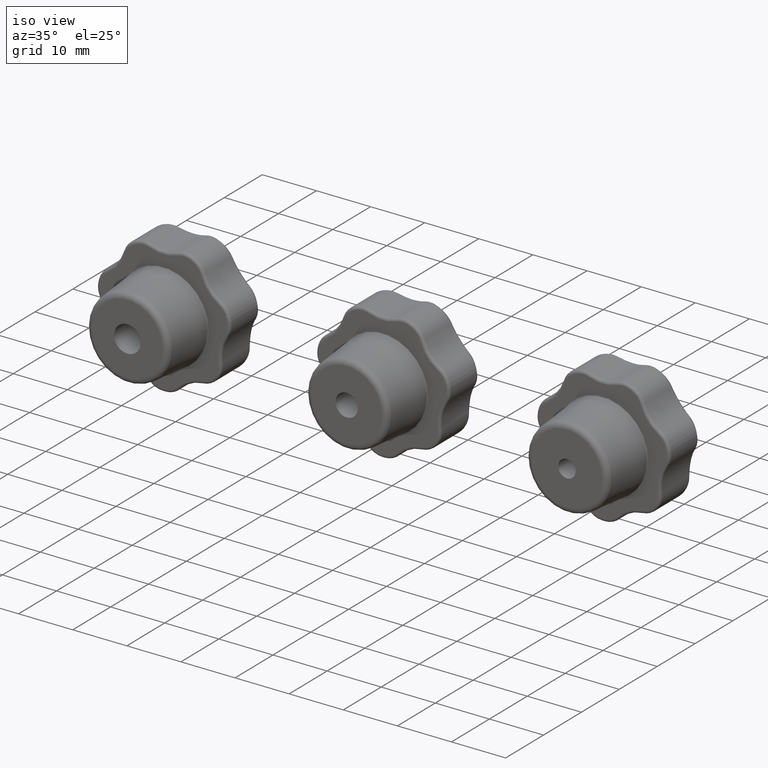
[diagram: clean part render]
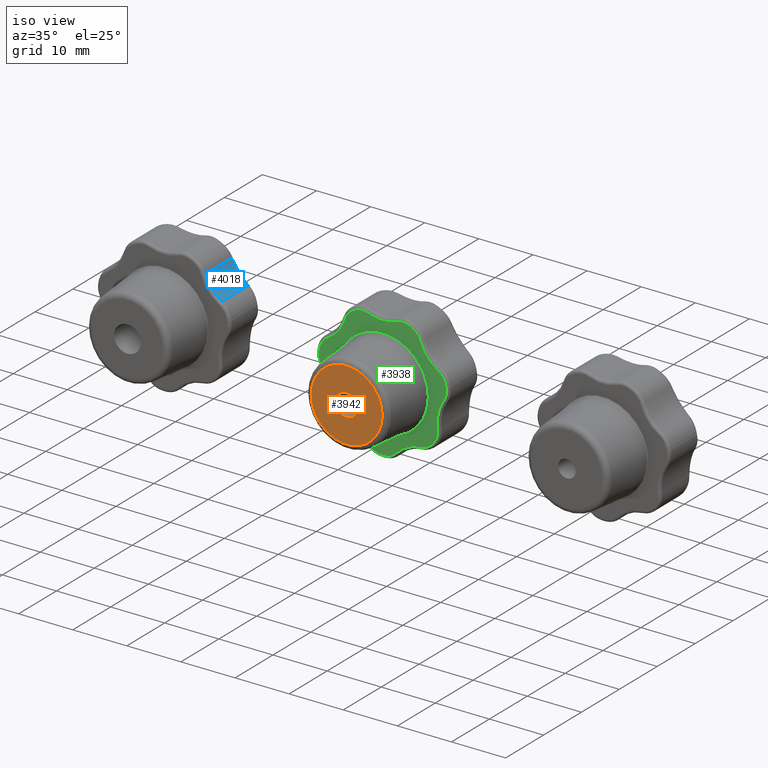
[diagram: same view with three faces highlighted in distinct colors, each labeled with its STEP entity id]
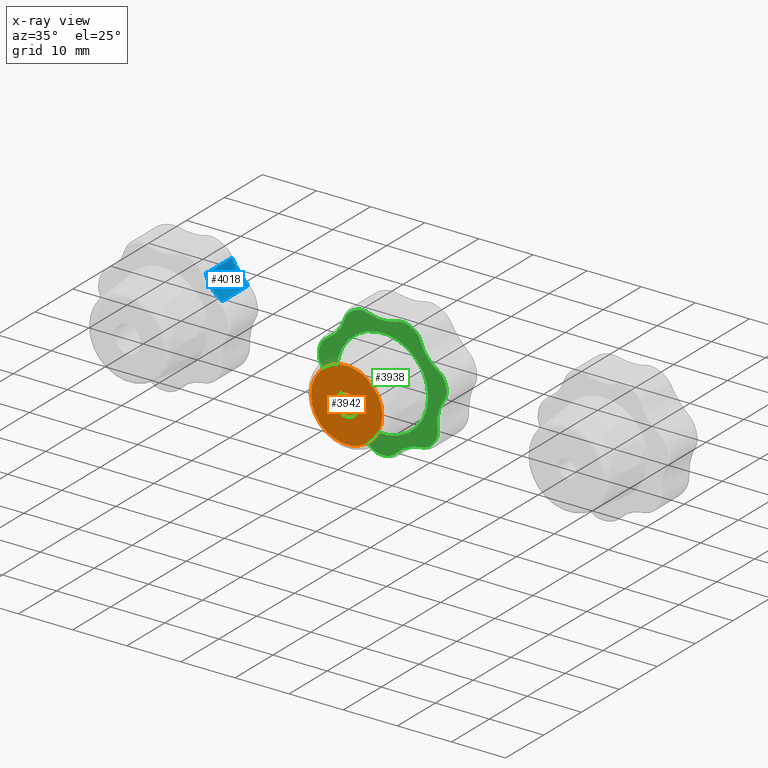
[diagram: x-ray of the same camera — body ghosted, the three highlighted faces saturated]
A machine part, iso view with three faces highlighted in distinct colors.
The next image is the same camera in x-ray (body ghosted, the three faces saturated) — at least one of them is partly hidden behind the body in this view.
Their STEP definitions:

[orange] entity #3942 — the highlighted planar face has unit normal (0, -1, -0).
#38=PLANE('',#4445);
#523=FACE_BOUND('',#1086,.T.);
#798=FACE_OUTER_BOUND('',#1085,.T.);
#1085=EDGE_LOOP('',(#3341));
#1086=EDGE_LOOP('',(#3342));
#1320=CIRCLE('',#4248,2.067);
#1450=CIRCLE('',#4444,6.57583586565548);
#1702=VERTEX_POINT('',#6964);
#1818=VERTEX_POINT('',#7940);
#2140=EDGE_CURVE('',#1702,#1702,#1320,.T.);
#2339=EDGE_CURVE('',#1818,#1818,#1450,.T.);
#3341=ORIENTED_EDGE('',*,*,#2339,.F.);
#3342=ORIENTED_EDGE('',*,*,#2140,.T.);
#3942=ADVANCED_FACE('',(#798,#523),#38,.T.);
#4248=AXIS2_PLACEMENT_3D('',#6965,#5100,#5101);
#4444=AXIS2_PLACEMENT_3D('',#7941,#5519,#5520);
#4445=AXIS2_PLACEMENT_3D('',#7942,#5521,#5522);
#5100=DIRECTION('center_axis',(-1.05688744923203E-32,1.,0.));
#5101=DIRECTION('ref_axis',(1.,1.05688744923203E-32,0.));
#5519=DIRECTION('center_axis',(-1.05688744923203E-32,1.,0.));
#5520=DIRECTION('ref_axis',(1.,1.05688744923203E-32,1.22464679914735E-16));
#5521=DIRECTION('center_axis',(1.05688744923203E-32,-1.,0.));
#5522=DIRECTION('ref_axis',(0.,0.,-1.));
#6964=CARTESIAN_POINT('',(2.067,-9.5,0.));
#6965=CARTESIAN_POINT('Origin',(1.00404307677043E-31,-9.5,0.));
#7940=CARTESIAN_POINT('',(-6.57583586565548,-9.5,0.));
#7941=CARTESIAN_POINT('Origin',(1.00404307677043E-31,-9.5,0.));
#7942=CARTESIAN_POINT('Origin',(-3.75,-9.5,0.));

[blue] entity #4018 — the highlighted cylindrical surface (partial cylindrical patch) has radius 6.625 mm, axis along (0, 1, 0).
#115=LINE('',#8894,#199);
#116=LINE('',#8895,#200);
#199=VECTOR('',#5907,6.93882651897587);
#200=VECTOR('',#5908,6.93882651897587);
#432=B_SPLINE_CURVE_WITH_KNOTS('',3,(#8413,#8414,#8415,#8416,#8417),
 .UNSPECIFIED.,.F.,.F.,(4,1,4),(7.13768044314273E-16,0.230545197008505,
0.537938793019845),.UNSPECIFIED.);
#603=CYLINDRICAL_SURFACE('',#4629,6.625);
#874=FACE_OUTER_BOUND('',#1163,.T.);
#1163=EDGE_LOOP('',(#3662,#3663,#3664,#3665));
#1543=CIRCLE('',#4581,6.625);
#1853=VERTEX_POINT('',#8369);
#1855=VERTEX_POINT('',#8405);
#1909=VERTEX_POINT('',#8816);
#1911=VERTEX_POINT('',#8822);
#2394=EDGE_CURVE('',#1853,#1855,#432,.T.);
#2490=EDGE_CURVE('',#1911,#1909,#1543,.T.);
#2526=EDGE_CURVE('',#1909,#1853,#115,.T.);
#2527=EDGE_CURVE('',#1855,#1911,#116,.T.);
#3662=ORIENTED_EDGE('',*,*,#2394,.F.);
#3663=ORIENTED_EDGE('',*,*,#2526,.F.);
#3664=ORIENTED_EDGE('',*,*,#2490,.F.);
#3665=ORIENTED_EDGE('',*,*,#2527,.F.);
#4018=ADVANCED_FACE('',(#874),#603,.F.);
#4581=AXIS2_PLACEMENT_3D('',#8824,#5809,#5810);
#4629=AXIS2_PLACEMENT_3D('',#8893,#5905,#5906);
#5809=DIRECTION('center_axis',(0.,1.,0.));
#5810=DIRECTION('ref_axis',(-0.78183148246803,0.,-0.623489801858734));
#5905=DIRECTION('center_axis',(0.,1.,0.));
#5906=DIRECTION('ref_axis',(-0.993210021945394,0.,-0.116335086312041));
#5907=DIRECTION('',(0.,1.,0.));
#5908=DIRECTION('',(0.,-1.,0.));
#8369=CARTESIAN_POINT('',(7.44793783320849,7.43882651897587,9.04005898637316));
#8405=CARTESIAN_POINT('',(10.4707279162794,7.43882651897587,5.24960011312204));
#8413=CARTESIAN_POINT('Ctrl Pts',(7.44793783320849,7.43882651897587,9.04005898637316));
#8414=CARTESIAN_POINT('Ctrl Pts',(7.65343299309312,7.60065060031157,8.37243605417307));
#8415=CARTESIAN_POINT('Ctrl Pts',(8.39347978962373,7.82879282181009,6.85952143243912));
#8416=CARTESIAN_POINT('Ctrl Pts',(9.6638515742614,7.6545919607568,5.71480417391353));
#8417=CARTESIAN_POINT('Ctrl Pts',(10.4707279162794,7.43882651897587,5.24960011312205));
#8816=CARTESIAN_POINT('',(7.44793783320849,0.5,9.04005898637316));
#8822=CARTESIAN_POINT('',(10.4707279162794,0.5,5.24960011312205));
#8824=CARTESIAN_POINT('Origin',(13.779779878499,0.5,10.9890077577602));
#8893=CARTESIAN_POINT('Origin',(13.779779878499,0.,10.9890077577602));
#8894=CARTESIAN_POINT('',(7.44793783320849,3.75,9.04005898637316));
#8895=CARTESIAN_POINT('',(10.4707279162794,3.75,5.24960011312205));

[green] entity #3938 — the highlighted planar face has unit normal (0, -1, -0).
#37=PLANE('',#4437);
#519=FACE_BOUND('',#1078,.T.);
#794=FACE_OUTER_BOUND('',#1077,.T.);
#1077=EDGE_LOOP('',(#3306,#3307,#3308,#3309,#3310,#3311,#3312,#3313,#3314,
#3315,#3316,#3317,#3318,#3319,#3320,#3321,#3322,#3323,#3324,#3325,#3326,
#3327,#3328,#3329,#3330,#3331,#3332,#3333));
#1078=EDGE_LOOP('',(#3334));
#1378=CIRCLE('',#4329,3.);
#1381=CIRCLE('',#4333,12.);
#1383=CIRCLE('',#4336,3.);
#1385=CIRCLE('',#4339,7.125);
#1387=CIRCLE('',#4342,3.);
#1389=CIRCLE('',#4345,12.);
#1391=CIRCLE('',#4348,3.);
#1393=CIRCLE('',#4351,7.125);
#1395=CIRCLE('',#4354,3.);
#1397=CIRCLE('',#4357,12.);
#1399=CIRCLE('',#4360,3.);
#1401=CIRCLE('',#4363,7.125);
#1403=CIRCLE('',#4366,3.);
#1406=CIRCLE('',#4370,12.);
#1409=CIRCLE('',#4374,3.);
#1412=CIRCLE('',#4378,7.125);
#1415=CIRCLE('',#4382,3.);
#1418=CIRCLE('',#4386,12.);
#1421=CIRCLE('',#4390,3.);
#1424=CIRCLE('',#4394,7.125);
#1427=CIRCLE('',#4398,3.);
#1430=CIRCLE('',#4402,12.);
#1433=CIRCLE('',#4406,3.);
#1436=CIRCLE('',#4410,7.125);
#1439=CIRCLE('',#4414,3.);
#1442=CIRCLE('',#4418,12.);
#1445=CIRCLE('',#4422,3.);
#1446=CIRCLE('',#4424,7.125);
#1447=CIRCLE('',#4438,8.43483282686891);
#1774=VERTEX_POINT('',#7768);
#1775=VERTEX_POINT('',#7770);
#1776=VERTEX_POINT('',#7774);
#1777=VERTEX_POINT('',#7778);
#1778=VERTEX_POINT('',#7782);
#1779=VERTEX_POINT('',#7786);
#1780=VERTEX_POINT('',#7790);
#1781=VERTEX_POINT('',#7794);
#1782=VERTEX_POINT('',#7798);
#1783=VERTEX_POINT('',#7802);
#1784=VERTEX_POINT('',#7806);
#1785=VERTEX_POINT('',#7810);
#1786=VERTEX_POINT('',#7814);
#1787=VERTEX_POINT('',#7818);
#1788=VERTEX_POINT('',#7822);
#1790=VERTEX_POINT('',#7828);
#1792=VERTEX_POINT('',#7834);
#1794=VERTEX_POINT('',#7840);
#1796=VERTEX_POINT('',#7846);
#1798=VERTEX_POINT('',#7852);
#1800=VERTEX_POINT('',#7858);
#1802=VERTEX_POINT('',#7864);
#1804=VERTEX_POINT('',#7870);
#1806=VERTEX_POINT('',#7876);
#1808=VERTEX_POINT('',#7882);
#1810=VERTEX_POINT('',#7888);
#1812=VERTEX_POINT('',#7894);
#1814=VERTEX_POINT('',#7900);
#1815=VERTEX_POINT('',#7931);
#2255=EDGE_CURVE('',#1774,#1775,#1378,.T.);
#2258=EDGE_CURVE('',#1775,#1776,#1381,.T.);
#2260=EDGE_CURVE('',#1776,#1777,#1383,.T.);
#2262=EDGE_CURVE('',#1777,#1778,#1385,.T.);
#2264=EDGE_CURVE('',#1778,#1779,#1387,.T.);
#2266=EDGE_CURVE('',#1779,#1780,#1389,.T.);
#2268=EDGE_CURVE('',#1780,#1781,#1391,.T.);
#2270=EDGE_CURVE('',#1781,#1782,#1393,.T.);
#2272=EDGE_CURVE('',#1782,#1783,#1395,.T.);
#2274=EDGE_CURVE('',#1783,#1784,#1397,.T.);
#2276=EDGE_CURVE('',#1784,#1785,#1399,.T.);
#2278=EDGE_CURVE('',#1785,#1786,#1401,.T.);
#2280=EDGE_CURVE('',#1786,#1787,#1403,.T.);
#2283=EDGE_CURVE('',#1787,#1788,#1406,.T.);
#2286=EDGE_CURVE('',#1788,#1790,#1409,.T.);
#2289=EDGE_CURVE('',#1790,#1792,#1412,.T.);
#2292=EDGE_CURVE('',#1792,#1794,#1415,.T.);
#2295=EDGE_CURVE('',#1794,#1796,#1418,.T.);
#2298=EDGE_CURVE('',#1796,#1798,#1421,.T.);
#2301=EDGE_CURVE('',#1798,#1800,#1424,.T.);
#2304=EDGE_CURVE('',#1800,#1802,#1427,.T.);
#2307=EDGE_CURVE('',#1802,#1804,#1430,.T.);
#2310=EDGE_CURVE('',#1804,#1806,#1433,.T.);
#2313=EDGE_CURVE('',#1806,#1808,#1436,.T.);
#2316=EDGE_CURVE('',#1808,#1810,#1439,.T.);
#2319=EDGE_CURVE('',#1810,#1812,#1442,.T.);
#2322=EDGE_CURVE('',#1812,#1814,#1445,.T.);
#2323=EDGE_CURVE('',#1814,#1774,#1446,.T.);
#2336=EDGE_CURVE('',#1815,#1815,#1447,.T.);
#3306=ORIENTED_EDGE('',*,*,#2255,.F.);
#3307=ORIENTED_EDGE('',*,*,#2323,.F.);
#3308=ORIENTED_EDGE('',*,*,#2322,.F.);
#3309=ORIENTED_EDGE('',*,*,#2319,.F.);
#3310=ORIENTED_EDGE('',*,*,#2316,.F.);
#3311=ORIENTED_EDGE('',*,*,#2313,.F.);
#3312=ORIENTED_EDGE('',*,*,#2310,.F.);
#3313=ORIENTED_EDGE('',*,*,#2307,.F.);
#3314=ORIENTED_EDGE('',*,*,#2304,.F.);
#3315=ORIENTED_EDGE('',*,*,#2301,.F.);
#3316=ORIENTED_EDGE('',*,*,#2298,.F.);
#3317=ORIENTED_EDGE('',*,*,#2295,.F.);
#3318=ORIENTED_EDGE('',*,*,#2292,.F.);
#3319=ORIENTED_EDGE('',*,*,#2289,.F.);
#3320=ORIENTED_EDGE('',*,*,#2286,.F.);
#3321=ORIENTED_EDGE('',*,*,#2283,.F.);
#3322=ORIENTED_EDGE('',*,*,#2280,.F.);
#3323=ORIENTED_EDGE('',*,*,#2278,.F.);
#3324=ORIENTED_EDGE('',*,*,#2276,.F.);
#3325=ORIENTED_EDGE('',*,*,#2274,.F.);
#3326=ORIENTED_EDGE('',*,*,#2272,.F.);
#3327=ORIENTED_EDGE('',*,*,#2270,.F.);
#3328=ORIENTED_EDGE('',*,*,#2268,.F.);
#3329=ORIENTED_EDGE('',*,*,#2266,.F.);
#3330=ORIENTED_EDGE('',*,*,#2264,.F.);
#3331=ORIENTED_EDGE('',*,*,#2262,.F.);
#3332=ORIENTED_EDGE('',*,*,#2260,.F.);
#3333=ORIENTED_EDGE('',*,*,#2258,.F.);
#3334=ORIENTED_EDGE('',*,*,#2336,.F.);
#3938=ADVANCED_FACE('',(#794,#519),#37,.T.);
#4329=AXIS2_PLACEMENT_3D('',#7771,#5277,#5278);
#4333=AXIS2_PLACEMENT_3D('',#7776,#5285,#5286);
#4336=AXIS2_PLACEMENT_3D('',#7780,#5291,#5292);
#4339=AXIS2_PLACEMENT_3D('',#7784,#5297,#5298);
#4342=AXIS2_PLACEMENT_3D('',#7788,#5303,#5304);
#4345=AXIS2_PLACEMENT_3D('',#7792,#5309,#5310);
#4348=AXIS2_PLACEMENT_3D('',#7796,#5315,#5316);
#4351=AXIS2_PLACEMENT_3D('',#7800,#5321,#5322);
#4354=AXIS2_PLACEMENT_3D('',#7804,#5327,#5328);
#4357=AXIS2_PLACEMENT_3D('',#7808,#5333,#5334);
#4360=AXIS2_PLACEMENT_3D('',#7812,#5339,#5340);
#4363=AXIS2_PLACEMENT_3D('',#7816,#5345,#5346);
#4366=AXIS2_PLACEMENT_3D('',#7820,#5351,#5352);
#4370=AXIS2_PLACEMENT_3D('',#7826,#5359,#5360);
#4374=AXIS2_PLACEMENT_3D('',#7832,#5367,#5368);
#4378=AXIS2_PLACEMENT_3D('',#7838,#5375,#5376);
#4382=AXIS2_PLACEMENT_3D('',#7844,#5383,#5384);
#4386=AXIS2_PLACEMENT_3D('',#7850,#5391,#5392);
#4390=AXIS2_PLACEMENT_3D('',#7856,#5399,#5400);
#4394=AXIS2_PLACEMENT_3D('',#7862,#5407,#5408);
#4398=AXIS2_PLACEMENT_3D('',#7868,#5415,#5416);
#4402=AXIS2_PLACEMENT_3D('',#7874,#5423,#5424);
#4406=AXIS2_PLACEMENT_3D('',#7880,#5431,#5432);
#4410=AXIS2_PLACEMENT_3D('',#7886,#5439,#5440);
#4414=AXIS2_PLACEMENT_3D('',#7892,#5447,#5448);
#4418=AXIS2_PLACEMENT_3D('',#7898,#5455,#5456);
#4422=AXIS2_PLACEMENT_3D('',#7903,#5463,#5464);
#4424=AXIS2_PLACEMENT_3D('',#7905,#5467,#5468);
#4437=AXIS2_PLACEMENT_3D('',#7930,#5505,#5506);
#4438=AXIS2_PLACEMENT_3D('',#7932,#5507,#5508);
#5277=DIRECTION('center_axis',(-1.05688744923203E-32,1.,0.));
#5278=DIRECTION('ref_axis',(-0.456114521719556,-4.8206171341787E-33,-0.889921088117672));
#5285=DIRECTION('center_axis',(-1.05688744923203E-32,1.,0.));
#5286=DIRECTION('ref_axis',(-0.78183148246803,-8.26307881234934E-33,-0.623489801858734));
#5291=DIRECTION('center_axis',(-1.05688744923203E-32,1.,0.));
#5292=DIRECTION('ref_axis',(-0.969103937809211,-1.02423378887189E-32,-0.246652706700494));
#5297=DIRECTION('center_axis',(1.05688744923203E-32,-1.,0.));
#5298=DIRECTION('ref_axis',(0.974927912181824,1.03038907429096E-32,0.222520933956314));
#5303=DIRECTION('center_axis',(-1.05688744923203E-32,1.,0.));
#5304=DIRECTION('ref_axis',(-0.980151076374418,-1.03590937097139E-32,-0.198252030209199));
#5309=DIRECTION('center_axis',(-1.05688744923203E-32,1.,0.));
#5310=DIRECTION('ref_axis',(-0.974927912181824,-1.03038907429096E-32,0.222520933956314));
#5315=DIRECTION('center_axis',(-1.05688744923203E-32,1.,0.));
#5316=DIRECTION('ref_axis',(-0.797067273499584,-8.42410397555305E-33,0.603890521134369));
#5321=DIRECTION('center_axis',(1.05688744923203E-32,-1.,0.));
#5322=DIRECTION('ref_axis',(0.78183148246803,8.26307881234934E-33,-0.623489801858733));
#5327=DIRECTION('center_axis',(-1.05688744923203E-32,1.,0.));
#5328=DIRECTION('ref_axis',(-0.766113879081065,-8.09696143483244E-33,0.642704850051222));
#5333=DIRECTION('center_axis',(-1.05688744923203E-32,1.,0.));
#5334=DIRECTION('ref_axis',(-0.433883739117558,-4.58566278299212E-33,0.900968867902419));
#5339=DIRECTION('center_axis',(-1.05688744923203E-32,1.,0.));
#5340=DIRECTION('ref_axis',(-0.024822695035461,-2.6234794839093E-34,0.999691869433365));
#5345=DIRECTION('center_axis',(1.05688744923203E-32,-1.,0.));
#5346=DIRECTION('ref_axis',(-8.37904169528421E-17,-8.85570400433776E-49,
-1.));
#5351=DIRECTION('center_axis',(-1.05688744923203E-32,1.,0.));
#5352=DIRECTION('ref_axis',(0.0248226950354608,2.62347948390928E-34,0.999691869433365));
#5359=DIRECTION('center_axis',(-1.05688744923203E-32,1.,0.));
#5360=DIRECTION('ref_axis',(0.433883739117558,4.58566278299212E-33,0.900968867902419));
#5367=DIRECTION('center_axis',(-1.05688744923203E-32,1.,0.));
#5368=DIRECTION('ref_axis',(0.766113879081065,8.09696143483244E-33,0.642704850051222));
#5375=DIRECTION('center_axis',(1.05688744923203E-32,-1.,0.));
#5376=DIRECTION('ref_axis',(-0.78183148246803,-8.26307881234934E-33,-0.623489801858734));
#5383=DIRECTION('center_axis',(-1.05688744923203E-32,1.,0.));
#5384=DIRECTION('ref_axis',(0.797067273499583,8.42410397555305E-33,0.603890521134369));
#5391=DIRECTION('center_axis',(-1.05688744923203E-32,1.,0.));
#5392=DIRECTION('ref_axis',(0.974927912181824,1.03038907429096E-32,0.222520933956314));
#5399=DIRECTION('center_axis',(-1.05688744923203E-32,1.,0.));
#5400=DIRECTION('ref_axis',(0.980151076374419,1.03590937097139E-32,-0.198252030209198));
#5407=DIRECTION('center_axis',(1.05688744923203E-32,-1.,0.));
#5408=DIRECTION('ref_axis',(-0.974927912181824,-1.03038907429096E-32,0.222520933956314));
#5415=DIRECTION('center_axis',(-1.05688744923203E-32,1.,0.));
#5416=DIRECTION('ref_axis',(0.969103937809212,1.02423378887189E-32,-0.246652706700494));
#5423=DIRECTION('center_axis',(-1.05688744923203E-32,1.,0.));
#5424=DIRECTION('ref_axis',(0.78183148246803,8.26307881234934E-33,-0.623489801858733));
#5431=DIRECTION('center_axis',(-1.05688744923203E-32,1.,0.));
#5432=DIRECTION('ref_axis',(0.456114521719557,4.8206171341787E-33,-0.889921088117671));
#5439=DIRECTION('center_axis',(1.05688744923203E-32,-1.,0.));
#5440=DIRECTION('ref_axis',(-0.433883739117558,-4.58566278299212E-33,0.900968867902419));
#5447=DIRECTION('center_axis',(-1.05688744923203E-32,1.,0.));
#5448=DIRECTION('ref_axis',(0.411385570830784,4.34788246606211E-33,-0.911461415591592));
#5455=DIRECTION('center_axis',(-1.05688744923203E-32,1.,0.));
#5456=DIRECTION('ref_axis',(1.83697019872103E-16,1.94147074764153E-48,-1.));
#5463=DIRECTION('center_axis',(-1.05688744923203E-32,1.,0.));
#5464=DIRECTION('ref_axis',(-0.411385570830784,-4.3478824660621E-33,-0.911461415591593));
#5467=DIRECTION('center_axis',(1.05688744923203E-32,-1.,0.));
#5468=DIRECTION('ref_axis',(0.433883739117558,4.58566278299212E-33,0.900968867902419));
#5505=DIRECTION('center_axis',(1.05688744923203E-32,-1.,0.));
#5506=DIRECTION('ref_axis',(0.,0.,-1.));
#5507=DIRECTION('center_axis',(1.05688744923203E-32,-1.,0.));
#5508=DIRECTION('ref_axis',(1.,1.05688744923203E-32,1.22464679914735E-16));
#7768=CARTESIAN_POINT('',(-7.11901830552849,-2.35044024024198E-33,-8.77418059035811));
#7770=CARTESIAN_POINT('',(-9.19550084446972,-2.42965235798065E-32,-7.70991337301248));
#7771=CARTESIAN_POINT('Origin',(-6.89662563335229,0.,-5.78243502975936));
#7774=CARTESIAN_POINT('',(-9.56280118396126,-1.01068045508299E-31,-7.24933331528005));
#7776=CARTESIAN_POINT('Origin',(-3.42113882891801E-48,0.,0.));
#7778=CARTESIAN_POINT('',(-10.1383241662624,-3.13496415444614E-32,-4.98809079372522));
#7780=CARTESIAN_POINT('Origin',(-7.17210088797094,0.,-5.43699998646004));
#7782=CARTESIAN_POINT('',(-11.2985659311445,6.21929490743083E-32,0.0952605177732541));
#7784=CARTESIAN_POINT('Origin',(-17.1831044522046,0.,-3.92193146098005));
#7786=CARTESIAN_POINT('',(-11.7611540016327,-3.10755401320266E-32,2.38227969598023));
#7788=CARTESIAN_POINT('Origin',(-8.82086550122451,0.,1.78670977198517));
#7790=CARTESIAN_POINT('',(-11.6300660281927,-1.22916708189367E-31,2.95661363385158));
#7792=CARTESIAN_POINT('Origin',(-3.42113882891801E-48,0.,0.));
#7794=CARTESIAN_POINT('',(-10.2209881455459,-1.58368097557427E-32,4.81643727201728));
#7796=CARTESIAN_POINT('Origin',(-8.72254952114456,0.,2.21746022538869));
#7798=CARTESIAN_POINT('',(-6.97006296186581,7.19710434201269E-32,8.89296851306093));
#7800=CARTESIAN_POINT('Origin',(-13.779779878499,0.,10.9890077577602));
#7802=CARTESIAN_POINT('',(-5.4704183117463,-1.44540411393343E-32,10.6805675642501));
#7804=CARTESIAN_POINT('Origin',(-4.10281373380972,0.,8.01042567318756));
#7806=CARTESIAN_POINT('',(-4.93965394308251,-5.22065825599342E-32,10.936170212766));
#7808=CARTESIAN_POINT('Origin',(-3.42113882891801E-48,0.,0.));
#7810=CARTESIAN_POINT('',(-2.60703958107132,1.16014627910965E-32,10.9940898345154));
#7812=CARTESIAN_POINT('Origin',(-3.70474045731188,0.,8.20212765957447));
#7814=CARTESIAN_POINT('',(2.60703958107132,2.75534741288541E-32,10.9940898345154));
#7816=CARTESIAN_POINT('Origin',(5.28443724616016E-33,0.,17.625));
#7818=CARTESIAN_POINT('',(4.93965394308251,1.30516456399835E-32,10.936170212766));
#7820=CARTESIAN_POINT('Origin',(3.70474045731188,0.,8.20212765957447));
#7822=CARTESIAN_POINT('',(5.4704183117463,5.78161645573374E-32,10.6805675642501));
#7826=CARTESIAN_POINT('Origin',(-3.42113882891801E-48,0.,0.));
#7828=CARTESIAN_POINT('',(6.97006296186581,3.03035972295271E-32,8.89296851306093));
#7832=CARTESIAN_POINT('Origin',(4.10281373380972,0.,8.01042567318756));
#7834=CARTESIAN_POINT('',(10.2209881455459,-3.76124231698889E-32,4.81643727201728));
#7838=CARTESIAN_POINT('Origin',(13.779779878499,0.,10.9890077577602));
#7840=CARTESIAN_POINT('',(11.6300660281927,3.07291770473418E-32,2.95661363385158));
#7844=CARTESIAN_POINT('Origin',(8.72254952114456,0.,2.21746022538869));
#7846=CARTESIAN_POINT('',(11.7611540016327,1.24302160528107E-31,2.38227969598023));
#7850=CARTESIAN_POINT('Origin',(-3.42113882891801E-48,0.,0.));
#7852=CARTESIAN_POINT('',(11.2985659311445,2.6186504873393E-32,0.0952605177732588));
#7856=CARTESIAN_POINT('Origin',(8.82086550122451,0.,1.78670977198518));
#7858=CARTESIAN_POINT('',(10.1383241662624,-7.44553986680959E-32,-4.98809079372522));
#7862=CARTESIAN_POINT('Origin',(17.1831044522046,0.,-3.92193146098004));
#7864=CARTESIAN_POINT('',(9.56280118396126,2.52670113770747E-32,-7.24933331528004));
#7868=CARTESIAN_POINT('Origin',(7.17210088797094,0.,-5.43699998646003));
#7870=CARTESIAN_POINT('',(9.19550084446972,9.7186094319226E-32,-7.70991337301247));
#7874=CARTESIAN_POINT('Origin',(-3.42113882891801E-48,0.,0.));
#7876=CARTESIAN_POINT('',(7.11901830552849,2.35044024024199E-33,-8.77418059035811));
#7880=CARTESIAN_POINT('Origin',(6.89662563335229,0.,-5.78243502975936));
#7882=CARTESIAN_POINT('',(2.42129530565924,-5.52319403558793E-32,-11.0364847532835));
#7886=CARTESIAN_POINT('Origin',(7.64720090194697,0.,-15.8795762967801));
#7888=CARTESIAN_POINT('',(0.294552002612193,7.78270786767468E-34,-11.9963844185553));
#7892=CARTESIAN_POINT('Origin',(0.220914001959145,0.,-8.9972883139165));
#7894=CARTESIAN_POINT('',(-0.294552002612189,-3.11308314706983E-33,-11.9963844185553));
#7898=CARTESIAN_POINT('Origin',(-3.42113882891801E-48,0.,0.));
#7900=CARTESIAN_POINT('',(-2.42129530565924,-2.32555538340545E-32,-11.0364847532835));
#7903=CARTESIAN_POINT('Origin',(-0.220914001959142,0.,-8.9972883139165));
#7905=CARTESIAN_POINT('Origin',(-7.64720090194696,0.,-15.8795762967801));
#7930=CARTESIAN_POINT('Origin',(-10.375,0.,0.));
#7931=CARTESIAN_POINT('',(-8.43483282686891,-8.91466895108808E-32,-2.06593820455361E-15));
#7932=CARTESIAN_POINT('Origin',(4.27642353614751E-48,0.,0.));